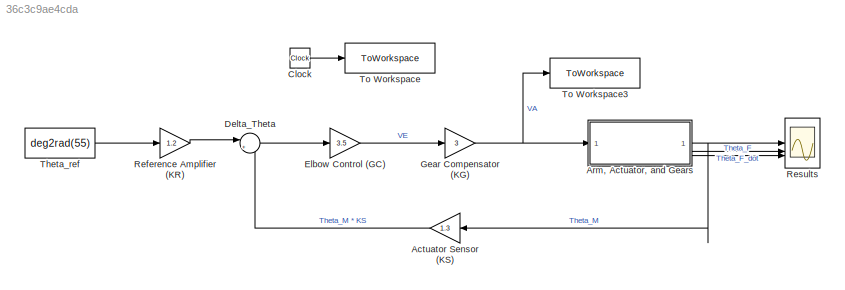
MODEL slx_36c3c9ae4cda
KIND model
CONFIG AbsTol = auto
CONFIG EnableMultiTasking = off
CONFIG FixedStep = 0.001
CONFIG MaxStep = auto
CONFIG MinStep = auto
CONFIG RelTol = 1e-3
CONFIG SampleTimeConstraint = Unconstrained
CONFIG SolverName = ode4
CONFIG StartTime = 0.0
CONFIG StopTime = 10
BLOCK [Gain] Actuator Sensor (KS)
  Gain = 1.3
  NameLocation = top
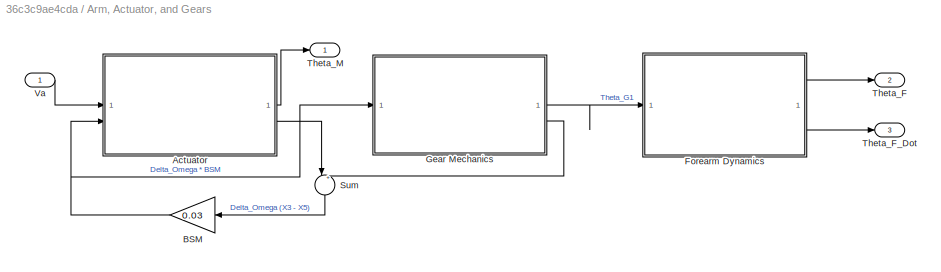
BLOCK [SubSystem] Arm, Actuator, and Gears
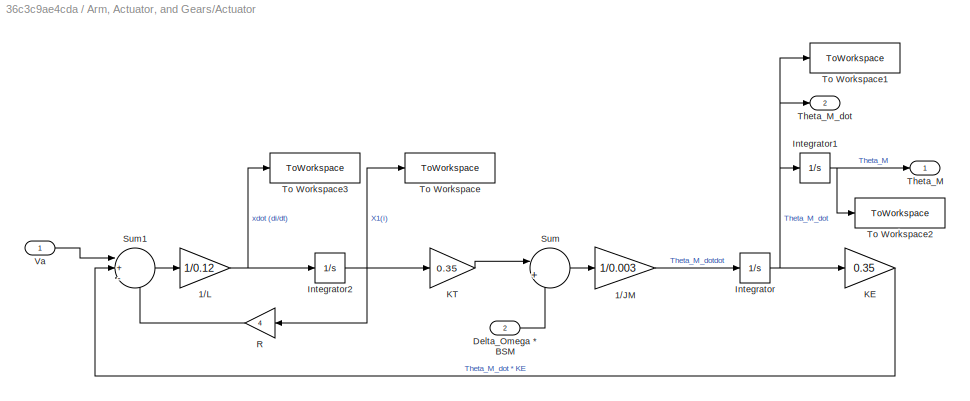
BLOCK [SubSystem] Arm, Actuator, and Gears/Actuator
BLOCK [Gain] Arm, Actuator, and Gears/Actuator/1//JM
  Gain = 1/0.003
BLOCK [Gain] Arm, Actuator, and Gears/Actuator/1//L
  Gain = 1/0.12
BLOCK [Inport] Arm, Actuator, and Gears/Actuator/Delta_Omega * BSM
  Port = 2
BLOCK [Integrator] Arm, Actuator, and Gears/Actuator/Integrator
BLOCK [Integrator] Arm, Actuator, and Gears/Actuator/Integrator1
BLOCK [Integrator] Arm, Actuator, and Gears/Actuator/Integrator2
BLOCK [Gain] Arm, Actuator, and Gears/Actuator/KE
  Gain = 0.35
BLOCK [Gain] Arm, Actuator, and Gears/Actuator/KT
  Gain = 0.35
BLOCK [Gain] Arm, Actuator, and Gears/Actuator/R
  Gain = 4
BLOCK [Sum] Arm, Actuator, and Gears/Actuator/Sum
  Inputs = |+-
BLOCK [Sum] Arm, Actuator, and Gears/Actuator/Sum1
  Inputs = |+--
BLOCK [Outport] Arm, Actuator, and Gears/Actuator/Theta_M
BLOCK [Outport] Arm, Actuator, and Gears/Actuator/Theta_M_dot
  Port = 2
BLOCK [ToWorkspace] Arm, Actuator, and Gears/Actuator/To Workspace
  FixptAsFi = on
  MaxDataPoints = inf
  SampleTime = -1
  SaveFormat = Timeseries
  VariableName = X1
BLOCK [ToWorkspace] Arm, Actuator, and Gears/Actuator/To Workspace1
  FixptAsFi = on
  MaxDataPoints = inf
  SampleTime = -1
  SaveFormat = Timeseries
  VariableName = X3
BLOCK [ToWorkspace] Arm, Actuator, and Gears/Actuator/To Workspace2
  FixptAsFi = on
  MaxDataPoints = inf
  SampleTime = -1
  SaveFormat = Timeseries
  VariableName = X2
BLOCK [ToWorkspace] Arm, Actuator, and Gears/Actuator/To Workspace3
  FixptAsFi = on
  MaxDataPoints = inf
  SampleTime = -1
  SaveFormat = Timeseries
  VariableName = i_dot
BLOCK [Inport] Arm, Actuator, and Gears/Actuator/Va
BLOCK [Gain] Arm, Actuator, and Gears/BSM
  Gain = 0.03
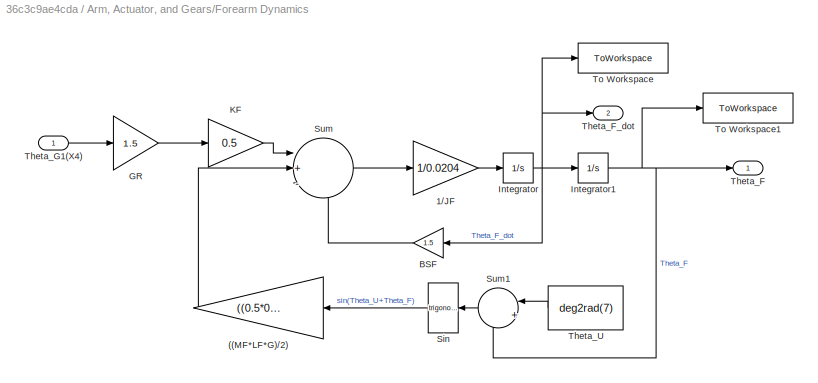
BLOCK [SubSystem] Arm, Actuator, and Gears/Forearm Dynamics
BLOCK [Gain] Arm, Actuator, and Gears/Forearm Dynamics/((MF*LF*G)//2)
  Gain = ((0.5*0.35*9.81)/2)
BLOCK [Gain] Arm, Actuator, and Gears/Forearm Dynamics/1//JF
  Gain = 1/0.0204
BLOCK [Gain] Arm, Actuator, and Gears/Forearm Dynamics/BSF
  Gain = 1.5
BLOCK [Gain] Arm, Actuator, and Gears/Forearm Dynamics/GR
  Gain = 1.5
BLOCK [Integrator] Arm, Actuator, and Gears/Forearm Dynamics/Integrator
BLOCK [Integrator] Arm, Actuator, and Gears/Forearm Dynamics/Integrator1
BLOCK [Gain] Arm, Actuator, and Gears/Forearm Dynamics/KF
  Gain = 0.5
BLOCK [Trigonometry] Arm, Actuator, and Gears/Forearm Dynamics/Sin
  NameLocation = top
BLOCK [Sum] Arm, Actuator, and Gears/Forearm Dynamics/Sum
  Inputs = |+--
BLOCK [Sum] Arm, Actuator, and Gears/Forearm Dynamics/Sum1
  Inputs = |++
  NameLocation = top
BLOCK [Outport] Arm, Actuator, and Gears/Forearm Dynamics/Theta_F
BLOCK [Outport] Arm, Actuator, and Gears/Forearm Dynamics/Theta_F_dot
  Port = 2
BLOCK [Inport] Arm, Actuator, and Gears/Forearm Dynamics/Theta_G1(X4)
BLOCK [Constant] Arm, Actuator, and Gears/Forearm Dynamics/Theta_U
  NameLocation = top
  Value = deg2rad(7)
BLOCK [ToWorkspace] Arm, Actuator, and Gears/Forearm Dynamics/To Workspace
  FixptAsFi = on
  MaxDataPoints = inf
  SampleTime = -1
  SaveFormat = Timeseries
  VariableName = X7
BLOCK [ToWorkspace] Arm, Actuator, and Gears/Forearm Dynamics/To Workspace1
  FixptAsFi = on
  MaxDataPoints = inf
  SampleTime = -1
  SaveFormat = Timeseries
  VariableName = X6
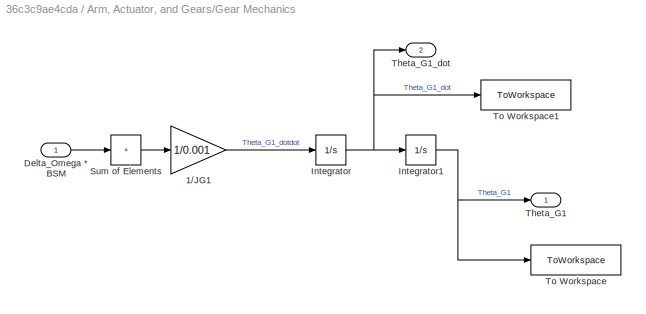
BLOCK [SubSystem] Arm, Actuator, and Gears/Gear Mechanics
BLOCK [Gain] Arm, Actuator, and Gears/Gear Mechanics/1//JG1
  Gain = 1/0.001
BLOCK [Inport] Arm, Actuator, and Gears/Gear Mechanics/Delta_Omega * BSM
BLOCK [Integrator] Arm, Actuator, and Gears/Gear Mechanics/Integrator
BLOCK [Integrator] Arm, Actuator, and Gears/Gear Mechanics/Integrator1
BLOCK [Sum] Arm, Actuator, and Gears/Gear Mechanics/Sum of Elements
  IconShape = rectangular
  Inputs = +
BLOCK [Outport] Arm, Actuator, and Gears/Gear Mechanics/Theta_G1
BLOCK [Outport] Arm, Actuator, and Gears/Gear Mechanics/Theta_G1_dot
  Port = 2
BLOCK [ToWorkspace] Arm, Actuator, and Gears/Gear Mechanics/To Workspace
  FixptAsFi = on
  MaxDataPoints = inf
  SampleTime = -1
  SaveFormat = Timeseries
  VariableName = X4
BLOCK [ToWorkspace] Arm, Actuator, and Gears/Gear Mechanics/To Workspace1
  FixptAsFi = on
  MaxDataPoints = inf
  SampleTime = -1
  SaveFormat = Timeseries
  VariableName = X5
BLOCK [Sum] Arm, Actuator, and Gears/Sum
  Inputs = |+-
  NameLocation = left
BLOCK [Outport] Arm, Actuator, and Gears/Theta_F
  Port = 2
BLOCK [Outport] Arm, Actuator, and Gears/Theta_F_Dot
  Port = 3
BLOCK [Outport] Arm, Actuator, and Gears/Theta_M
BLOCK [Inport] Arm, Actuator, and Gears/Va
BLOCK [Clock] Clock
BLOCK [Sum] Delta_Theta
  Inputs = |+-
  NameLocation = top
BLOCK [Gain] Elbow Control (GC)
  Gain = 3.5
BLOCK [Gain] Gear Compensator (KG)
  Gain = 3
BLOCK [Gain] Reference Amplifier (KR)
  Gain = 1.2
BLOCK [Scope] Results
  ActiveDisplayYMaximum = 9.0057480309886788
  ActiveDisplayYMinimum = -2.9473768605800479
  Floating = off
  GraphicalSettings = {"Style":{"BackgroundColor":[0.12941176470588237,0.12941176470588237,0.12941176470588237],"AxesColor":[0.07058823529411765,0.07058823529411765,0.07058823529411765],"LabelsColor":[0.8509803921568627,0.8509803921568627,0.8509803921568627],"PreserveColors":false,"Visible":[true,true,true],"LineStyle":["-","-","-"],"LineWidth":[1.5,1.5,1.5],"BarWidth":[0.9,0.9,0.9],"LineColor":["auto","auto","auto"],"...<+2230ch>
  MultipleDisplayCache = [{"MaxYLimMag":1930.8038743192531,"MaxYLimReal":9.0057480309886788,"MinYLimMag":0,"MinYLimReal":-2.9473768605800479,"PlotAsMagnitudePhase":false,"ShowGrid":true,"ShowLegend":false,"Title":"%<SignalLabel>","YLabel":""}]
  NumInputPorts = 3
  ScopeFrameLocation = window
  Visible = on
  WasSavedAsWebScope = on
  WindowPosition = [96.000000,269.000000,760.000000,963.000000,]
BLOCK [Constant] Theta_ref
  Value = deg2rad(55)
BLOCK [ToWorkspace] To Workspace
  FixptAsFi = on
  MaxDataPoints = inf
  SampleTime = -1
  SaveFormat = Timeseries
  VariableName = time
BLOCK [ToWorkspace] To Workspace3
  FixptAsFi = on
  MaxDataPoints = inf
  SampleTime = -1
  SaveFormat = Timeseries
  VariableName = VA
LINE Actuator Sensor (KS):1 -> Delta_Theta:2
LINE Arm, Actuator, and Gears/Actuator/1//JM:1 -> Arm, Actuator, and Gears/Actuator/Integrator:1
NET Arm, Actuator, and Gears/Actuator/1//L:1 -> Arm, Actuator, and Gears/Actuator/Integrator2:1, Arm, Actuator, and Gears/Actuator/To Workspace3:1
LINE Arm, Actuator, and Gears/Actuator/Delta_Omega * BSM:1 -> Arm, Actuator, and Gears/Actuator/Sum:2
NET Arm, Actuator, and Gears/Actuator/Integrator1:1 -> Arm, Actuator, and Gears/Actuator/Theta_M:1, Arm, Actuator, and Gears/Actuator/To Workspace2:1
NET Arm, Actuator, and Gears/Actuator/Integrator2:1 -> Arm, Actuator, and Gears/Actuator/KT:1, Arm, Actuator, and Gears/Actuator/R:1, Arm, Actuator, and Gears/Actuator/To Workspace:1
NET Arm, Actuator, and Gears/Actuator/Integrator:1 -> Arm, Actuator, and Gears/Actuator/Integrator1:1, Arm, Actuator, and Gears/Actuator/KE:1, Arm, Actuator, and Gears/Actuator/Theta_M_dot:1, Arm, Actuator, and Gears/Actuator/To Workspace1:1
LINE Arm, Actuator, and Gears/Actuator/KE:1 -> Arm, Actuator, and Gears/Actuator/Sum1:2
LINE Arm, Actuator, and Gears/Actuator/KT:1 -> Arm, Actuator, and Gears/Actuator/Sum:1
LINE Arm, Actuator, and Gears/Actuator/R:1 -> Arm, Actuator, and Gears/Actuator/Sum1:3
LINE Arm, Actuator, and Gears/Actuator/Sum1:1 -> Arm, Actuator, and Gears/Actuator/1//L:1
LINE Arm, Actuator, and Gears/Actuator/Sum:1 -> Arm, Actuator, and Gears/Actuator/1//JM:1
LINE Arm, Actuator, and Gears/Actuator/Va:1 -> Arm, Actuator, and Gears/Actuator/Sum1:1
LINE Arm, Actuator, and Gears/Actuator:1 -> Arm, Actuator, and Gears/Theta_M:1
LINE Arm, Actuator, and Gears/Actuator:2 -> Arm, Actuator, and Gears/Sum:1
NET Arm, Actuator, and Gears/BSM:1 -> Arm, Actuator, and Gears/Actuator:2, Arm, Actuator, and Gears/Gear Mechanics:1
LINE Arm, Actuator, and Gears/Forearm Dynamics/((MF*LF*G)//2):1 -> Arm, Actuator, and Gears/Forearm Dynamics/Sum:2
LINE Arm, Actuator, and Gears/Forearm Dynamics/1//JF:1 -> Arm, Actuator, and Gears/Forearm Dynamics/Integrator:1
LINE Arm, Actuator, and Gears/Forearm Dynamics/BSF:1 -> Arm, Actuator, and Gears/Forearm Dynamics/Sum:3
LINE Arm, Actuator, and Gears/Forearm Dynamics/GR:1 -> Arm, Actuator, and Gears/Forearm Dynamics/KF:1
NET Arm, Actuator, and Gears/Forearm Dynamics/Integrator1:1 -> Arm, Actuator, and Gears/Forearm Dynamics/Sum1:2, Arm, Actuator, and Gears/Forearm Dynamics/Theta_F:1, Arm, Actuator, and Gears/Forearm Dynamics/To Workspace1:1
NET Arm, Actuator, and Gears/Forearm Dynamics/Integrator:1 -> Arm, Actuator, and Gears/Forearm Dynamics/BSF:1, Arm, Actuator, and Gears/Forearm Dynamics/Integrator1:1, Arm, Actuator, and Gears/Forearm Dynamics/Theta_F_dot:1, Arm, Actuator, and Gears/Forearm Dynamics/To Workspace:1
LINE Arm, Actuator, and Gears/Forearm Dynamics/KF:1 -> Arm, Actuator, and Gears/Forearm Dynamics/Sum:1
LINE Arm, Actuator, and Gears/Forearm Dynamics/Sin:1 -> Arm, Actuator, and Gears/Forearm Dynamics/((MF*LF*G)//2):1
LINE Arm, Actuator, and Gears/Forearm Dynamics/Sum1:1 -> Arm, Actuator, and Gears/Forearm Dynamics/Sin:1
LINE Arm, Actuator, and Gears/Forearm Dynamics/Sum:1 -> Arm, Actuator, and Gears/Forearm Dynamics/1//JF:1
LINE Arm, Actuator, and Gears/Forearm Dynamics/Theta_G1(X4):1 -> Arm, Actuator, and Gears/Forearm Dynamics/GR:1
LINE Arm, Actuator, and Gears/Forearm Dynamics/Theta_U:1 -> Arm, Actuator, and Gears/Forearm Dynamics/Sum1:1
LINE Arm, Actuator, and Gears/Forearm Dynamics:1 -> Arm, Actuator, and Gears/Theta_F:1
LINE Arm, Actuator, and Gears/Forearm Dynamics:2 -> Arm, Actuator, and Gears/Theta_F_Dot:1
LINE Arm, Actuator, and Gears/Gear Mechanics/1//JG1:1 -> Arm, Actuator, and Gears/Gear Mechanics/Integrator:1
LINE Arm, Actuator, and Gears/Gear Mechanics/Delta_Omega * BSM:1 -> Arm, Actuator, and Gears/Gear Mechanics/Sum of Elements:1
NET Arm, Actuator, and Gears/Gear Mechanics/Integrator1:1 -> Arm, Actuator, and Gears/Gear Mechanics/Theta_G1:1, Arm, Actuator, and Gears/Gear Mechanics/To Workspace:1
NET Arm, Actuator, and Gears/Gear Mechanics/Integrator:1 -> Arm, Actuator, and Gears/Gear Mechanics/Integrator1:1, Arm, Actuator, and Gears/Gear Mechanics/Theta_G1_dot:1, Arm, Actuator, and Gears/Gear Mechanics/To Workspace1:1
LINE Arm, Actuator, and Gears/Gear Mechanics/Sum of Elements:1 -> Arm, Actuator, and Gears/Gear Mechanics/1//JG1:1
LINE Arm, Actuator, and Gears/Gear Mechanics:1 -> Arm, Actuator, and Gears/Forearm Dynamics:1
LINE Arm, Actuator, and Gears/Gear Mechanics:2 -> Arm, Actuator, and Gears/Sum:2
LINE Arm, Actuator, and Gears/Sum:1 -> Arm, Actuator, and Gears/BSM:1
LINE Arm, Actuator, and Gears/Va:1 -> Arm, Actuator, and Gears/Actuator:1
NET Arm, Actuator, and Gears:1 -> Actuator Sensor (KS):1, Results:1
LINE Arm, Actuator, and Gears:2 -> Results:2
LINE Arm, Actuator, and Gears:3 -> Results:3
LINE Clock:1 -> To Workspace:1
LINE Delta_Theta:1 -> Elbow Control (GC):1
LINE Elbow Control (GC):1 -> Gear Compensator (KG):1
NET Gear Compensator (KG):1 -> Arm, Actuator, and Gears:1, To Workspace3:1
LINE Reference Amplifier (KR):1 -> Delta_Theta:1
LINE Theta_ref:1 -> Reference Amplifier (KR):1
note: NET lines group one-source signal fan-out (src -> all destinations, sorted); 1:1 wires keep LINE
